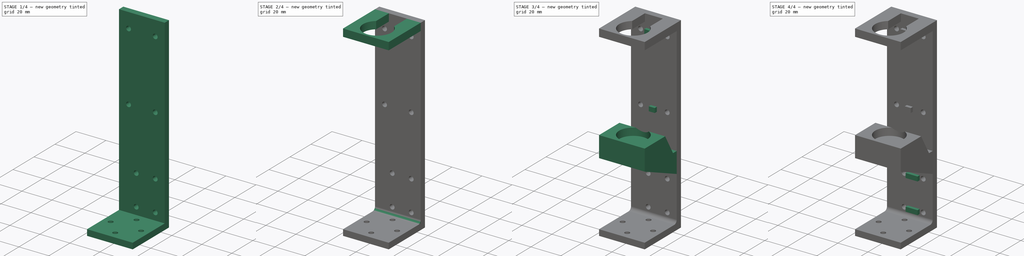
[diagram: build sequence overview — one tinted view per stage of 4, left to right]
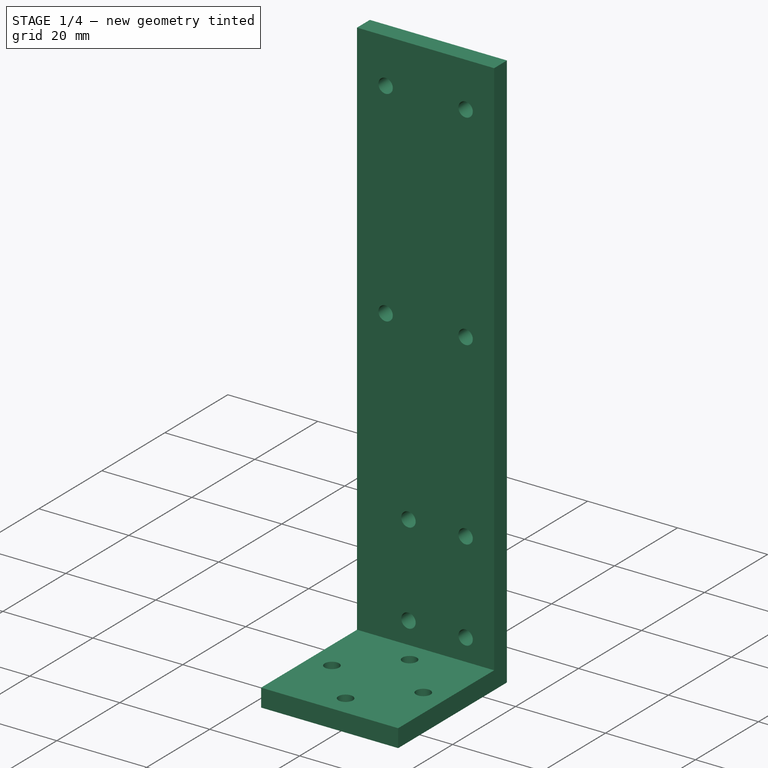
[diagram: stage 1 of 4 — iso view after this stage's code; geometry added in this stage tinted green]
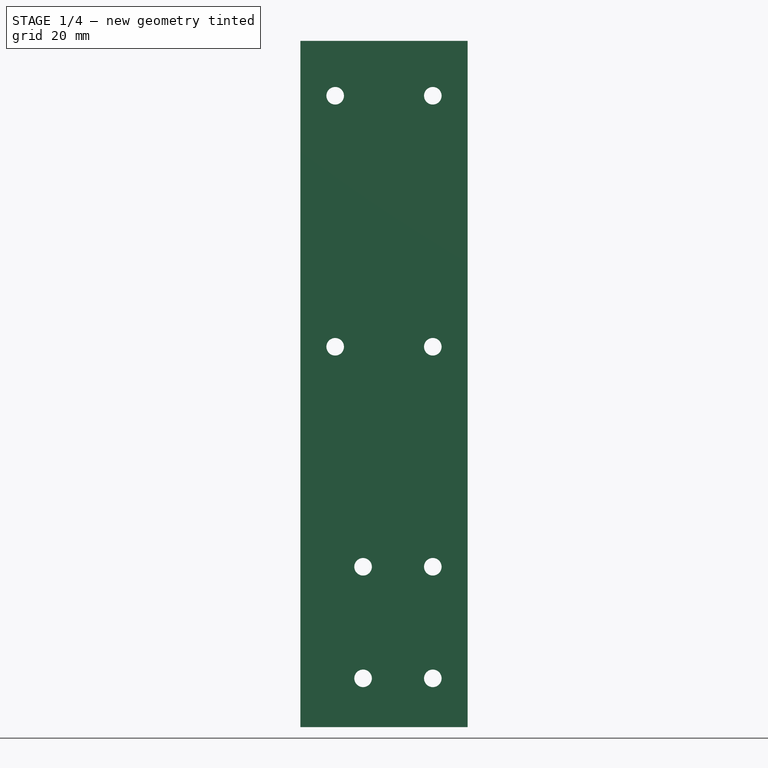
[diagram: stage 1 of 4 — front view after this stage's code; geometry added in this stage tinted green]
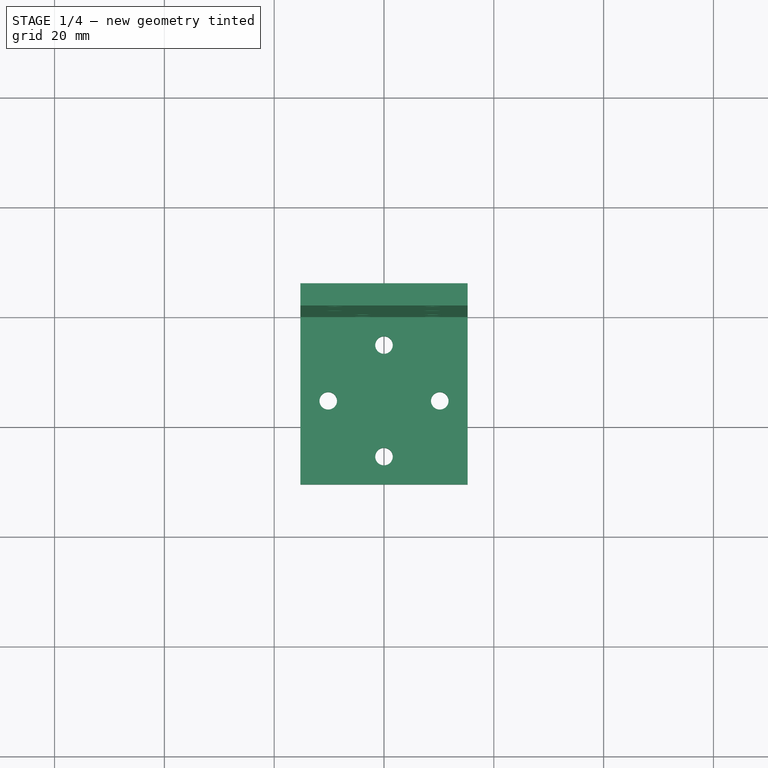
[diagram: stage 1 of 4 — top view after this stage's code; geometry added in this stage tinted green]
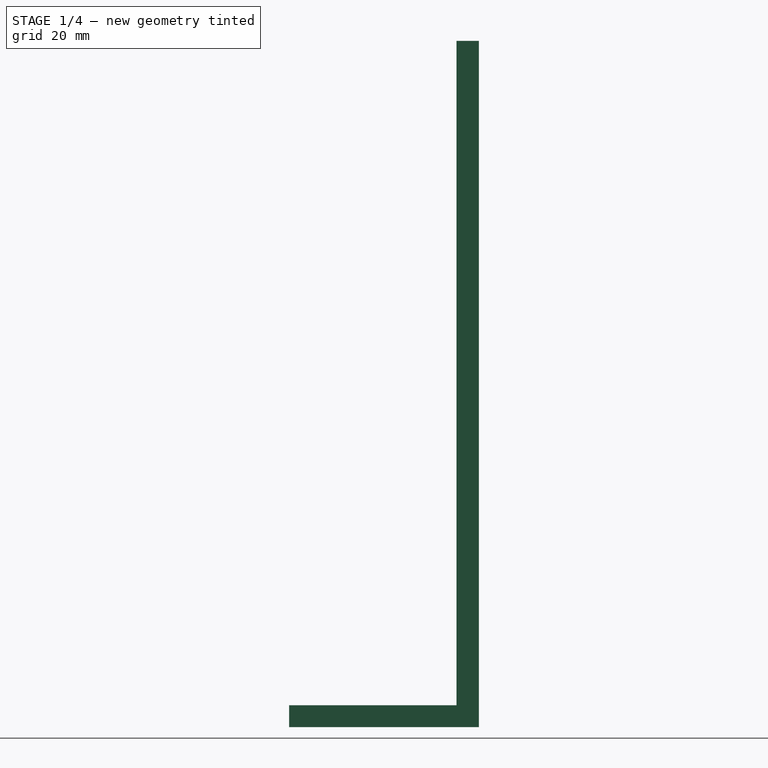
[diagram: stage 1 of 4 — right view after this stage's code; geometry added in this stage tinted green]
FCSTD DOCUMENT  (FreeCAD 1.0R39109 (Git))
Label: sensor_mount
License: Creative Commons Attribution-ShareAlike 4.0
LicenseURL: https://creativecommons.org/licenses/by-sa/4.0/
objects: Sketcher::SketchObject×8, PartDesign::Pad×6, PartDesign::Pocket×2, PartDesign::Fillet×1, PartDesign::Body×1
note: 44 computed .brp shape members not serialized (recipe doc carries the construction recipe); baked Part::Feature solids carry a one-line shape summary decoded from their .brp

FEATURE [Sketcher::SketchObject] Sketch
  ArcFitTolerance = 0
  AttachmentSupport = -> [XZ_Plane]
  FullyConstrained = true
  MakeInternals = false
  MapMode = 5
  Placement = pos=(0,0,0) rot=(1,0,0;1.5708rad)
  sketch-geometry (13):
    g0: LineSegment StartX=-15.24 StartY=0 StartZ=0 EndX=15.24 EndY=0 EndZ=0
    g1: LineSegment StartX=15.24 StartY=0 StartZ=0 EndX=15.24 EndY=125 EndZ=0
    g2: LineSegment StartX=15.24 StartY=125 StartZ=0 EndX=-15.24 EndY=125 EndZ=0
    g3: LineSegment StartX=-15.24 StartY=125 StartZ=0 EndX=-15.24 EndY=0 EndZ=0
    g4: Circle CenterX=-8.89 CenterY=69.28 CenterZ=0 NormalX=0 NormalY=0 NormalZ=1 AngleXU=0 Radius=1.6
    g5: Circle CenterX=8.89 CenterY=69.28 CenterZ=0 NormalX=0 NormalY=0 NormalZ=1 AngleXU=0 Radius=1.6
    g6: Circle CenterX=-8.89 CenterY=115 CenterZ=0 NormalX=0 NormalY=0 NormalZ=1 AngleXU=0 Radius=1.6
    g7: Circle CenterX=8.89 CenterY=115 CenterZ=0 NormalX=0 NormalY=0 NormalZ=1 AngleXU=0 Radius=1.6
    g8: Circle CenterX=-3.81 CenterY=29.21 CenterZ=0 NormalX=0 NormalY=0 NormalZ=1 AngleXU=0 Radius=1.6
    g9: Circle CenterX=8.89 CenterY=29.21 CenterZ=0 NormalX=0 NormalY=0 NormalZ=1 AngleXU=0 Radius=1.6
    g10: Circle CenterX=-3.81 CenterY=8.89 CenterZ=0 NormalX=0 NormalY=0 NormalZ=1 AngleXU=0 Radius=1.6
    g11: Circle CenterX=8.89 CenterY=8.89 CenterZ=0 NormalX=0 NormalY=0 NormalZ=1 AngleXU=0 Radius=1.6
    g12: GeomPoint [constr] X=-8.89 Y=92.14 Z=0
  constraints (36):
    c: Coincident(g0,g1)
    c: Coincident(g2,g3)
    c: Coincident(g3,g0)
    c: Horizontal(g2)
    c: Vertical(g1)
    c: Vertical(g3)
    c: DistanceX(g0,g0) = 30.48
    c: DistanceY(g0,g1) = 125
    c: Symmetric(g0,g0,g-2)
    c: Horizontal(g0,g-1)
    c: Diameter(g7) = 3.2
    c: Equal(g7,g6)
    c: Equal(g6,g4)
    c: Equal(g4,g5)
    c: Horizontal(g7,g6)
    c: Vertical(g7,g5)
    c: Vertical(g4,g6)
    c: DistanceX(g4,g5) = 17.78
    c: DistanceY(g4,g6) = 45.72
    c: Symmetric(g4,g5,g-2)
    c: Equal(g11,g9)
    c: Equal(g9,g8)
    c: Equal(g8,g10)
    c: Equal(g10,g7)
    c: Horizontal(g8,g9)
    c: Vertical(g8,g10)
    c: Vertical(g9,g11)
    c: DistanceX(g10,g11) = 12.7
    c: DistanceY(g11,g9) = 20.32
    c: Symmetric(g6,g4,g12)
    c: Coincident(g2,g1)
    c: Vertical(g5,g9)
    c: Horizontal(g10,g11)
    c: DistanceY(g0,g11) = 8.89
    c: DistanceX(g0,g0) = 30.48  'width'
    c: DistanceY(g7,g1) = 10
FEATURE [PartDesign::Pad] Pad
  Direction = (0,-1,2e-16)
  Length = 4.064
  Length2 = 10
  Placement = pos=(0,0,0) rot=(1,0,0;1.5708rad)
  Profile = -> Sketch
  ReferenceAxis = -> Sketch [N_Axis]
  Reversed = true
  Suppressed = false
  Type = 0
FEATURE [Sketcher::SketchObject] Sketch001
  ArcFitTolerance = 0
  AttachmentSupport = -> [XY_Plane]
  FullyConstrained = true
  MakeInternals = false
  MapMode = 5
  sketch-geometry (10):
    g0: LineSegment StartX=-15.24 StartY=0 StartZ=0 EndX=15.24 EndY=0 EndZ=0
    g1: LineSegment StartX=15.24 StartY=0 StartZ=0 EndX=15.24 EndY=-30.48 EndZ=0
    g2: LineSegment StartX=15.24 StartY=-30.48 StartZ=0 EndX=-15.24 EndY=-30.48 EndZ=0
    g3: LineSegment StartX=-15.24 StartY=-30.48 StartZ=0 EndX=-15.24 EndY=0 EndZ=0
    g4: Circle CenterX=0 CenterY=-5.08 CenterZ=0 NormalX=0 NormalY=0 NormalZ=1 AngleXU=0 Radius=1.6
    g5: Circle CenterX=3.6e-15 CenterY=-25.4 CenterZ=0 NormalX=0 NormalY=0 NormalZ=1 AngleXU=0 Radius=1.6
    g6: Circle CenterX=10.16 CenterY=-15.24 CenterZ=0 NormalX=0 NormalY=0 NormalZ=1 AngleXU=0 Radius=1.6
    g7: Circle CenterX=-10.16 CenterY=-15.24 CenterZ=0 NormalX=0 NormalY=0 NormalZ=1 AngleXU=0 Radius=1.6
    g8: LineSegment [constr] StartX=15.24 StartY=0 StartZ=0 EndX=-15.24 EndY=-30.48 EndZ=0
    g9: GeomPoint [constr] X=1.8e-15 Y=-15.24 Z=0
  constraints (24):
    c: Coincident(g0,g1)
    c: Coincident(g1,g2)
    c: Coincident(g2,g3)
    c: Coincident(g3,g0)
    c: Horizontal(g2)
    c: Vertical(g1)
    c: Vertical(g3)
    c: Symmetric(g0,g0,g-1)
    c: DistanceX(g0,g0) = 30.48
    c: DistanceY(g1,g0) = 30.48
    c: Horizontal(g0,g-1)
    c: PointOnObject(g4,g-2)
    c: Equal(g4,g7)
    c: Equal(g7,g5)
    c: Equal(g5,g6)
    c: Diameter(g4) = 3.2
    c: Coincident(g8,g0)
    c: Coincident(g8,g2)
    c: Symmetric(g2,g0,g9)
    c: Horizontal(g7,g9)
    c: Symmetric(g7,g6,g9)
    c: Symmetric(g5,g4,g9)
    c: DistanceX(g2,g7) = 5.08
    c: DistanceY(g1,g5) = 5.08
FEATURE [PartDesign::Pad] Pad001
  BaseFeature = -> Pad
  Direction = (0,0,1)
  Length = 4
  Length2 = 10
  Placement = pos=(0,0,0) rot=(1,0,0;1.5708rad)
  Profile = -> Sketch001
  ReferenceAxis = -> Sketch001 [N_Axis]
  Suppressed = false
  Type = 0
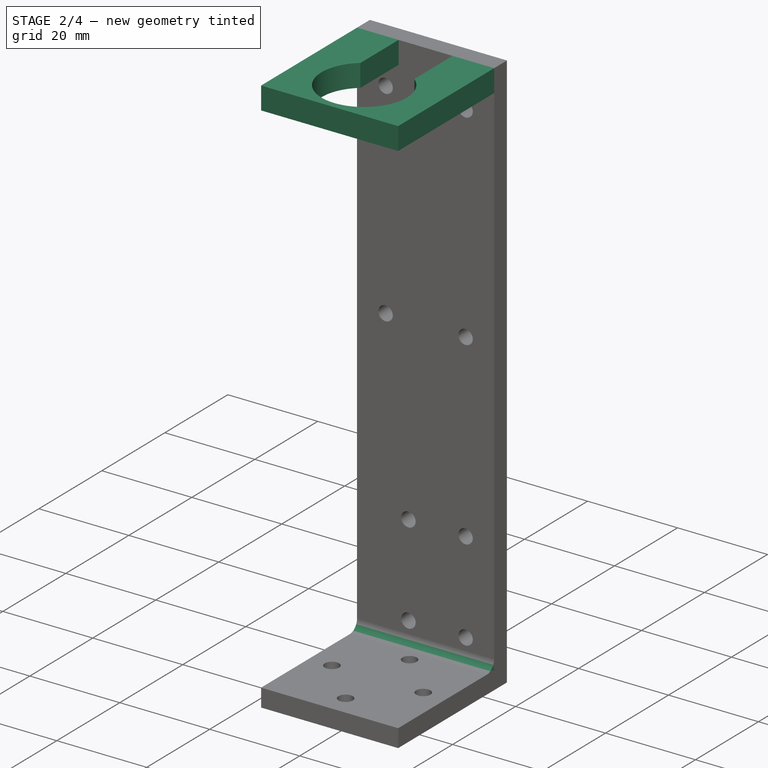
[diagram: stage 2 of 4 — iso view after this stage's code; geometry added in this stage tinted green]
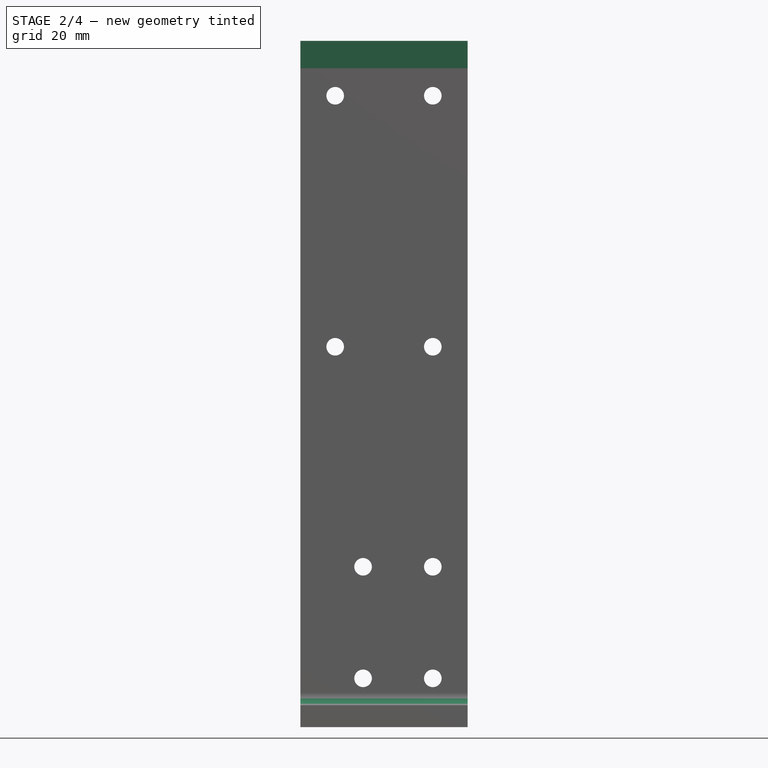
[diagram: stage 2 of 4 — front view after this stage's code; geometry added in this stage tinted green]
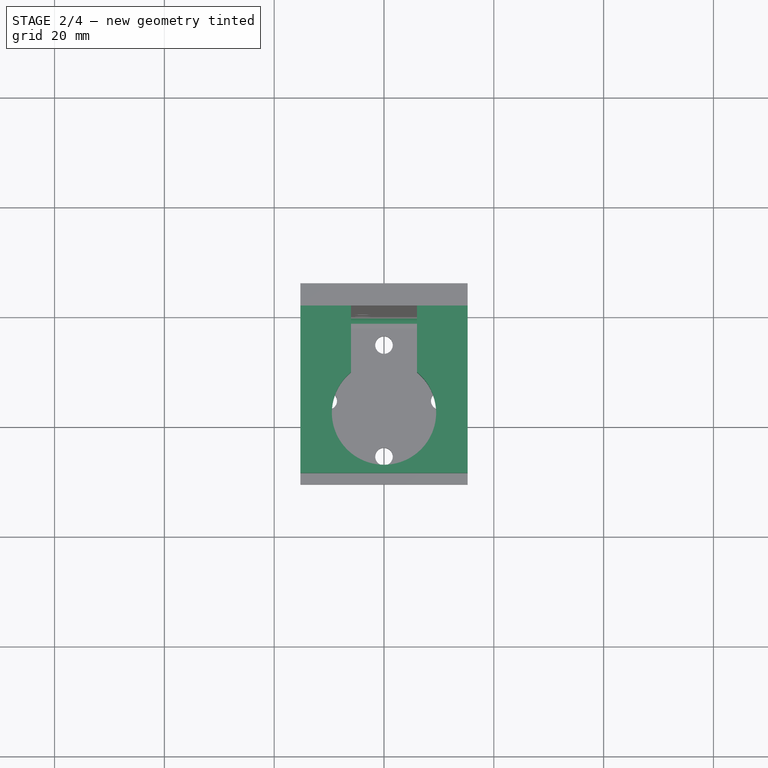
[diagram: stage 2 of 4 — top view after this stage's code; geometry added in this stage tinted green]
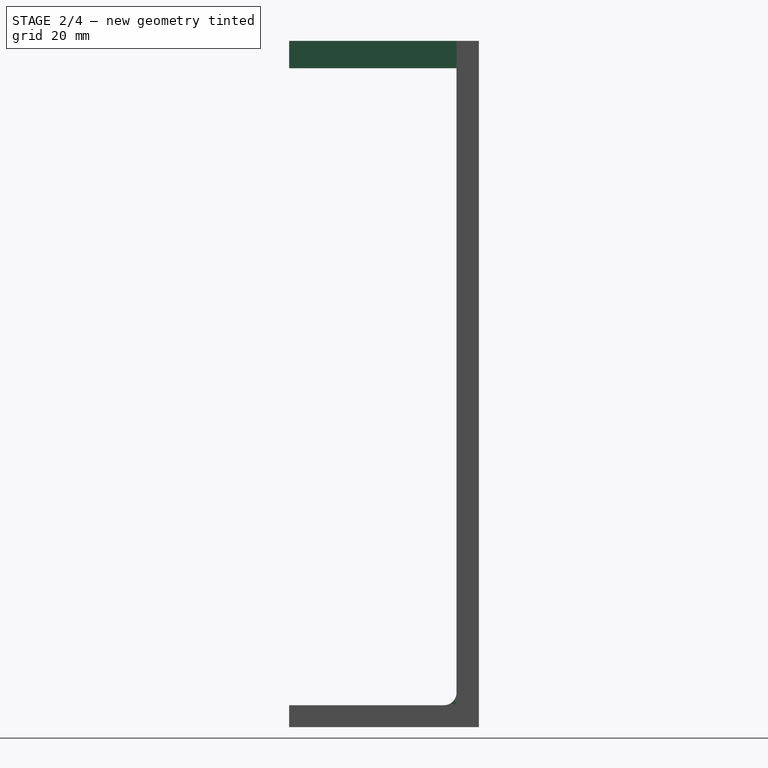
[diagram: stage 2 of 4 — right view after this stage's code; geometry added in this stage tinted green]
FEATURE [PartDesign::Fillet] Fillet
  Base = -> Pad001 [Edge30]
  BaseFeature = -> Pad001
  Placement = pos=(0,0,0) rot=(1,0,0;1.5708rad)
  Radius = 2.286
  SupportTransform = false
  Suppressed = false
  UseAllEdges = false
FEATURE [Sketcher::SketchObject] Sketch002
  ArcFitTolerance = 1e-06
  AttachmentSupport = -> [Pad001]
  ExternalGeometry = -> [Pad001]
  FullyConstrained = true
  MakeInternals = false
  MapMode = 5
  Placement = pos=(0,5.5e-14,125) rot=(0,0,1;3.14159rad)
  sketch-geometry (11):
    g0: LineSegment StartX=-15.24 StartY=30.48 StartZ=0 EndX=-15.24 EndY=0 EndZ=0
    g1: LineSegment StartX=15.24 StartY=0 StartZ=0 EndX=15.24 EndY=30.48 EndZ=0
    g2: LineSegment StartX=15.24 StartY=30.48 StartZ=0 EndX=-15.24 EndY=30.48 EndZ=0
    g3: GeomPoint [constr] X=2e-16 Y=19.5 Z=0
    g4: ArcOfCircle CenterX=2e-16 CenterY=19.5 CenterZ=0 NormalX=0 NormalY=0 NormalZ=1 AngleXU=0 Radius=9.5 StartAngle=5.39598 EndAngle=10.312
    g5: LineSegment StartX=-15.24 StartY=0 StartZ=0 EndX=-6 EndY=0 EndZ=0
    g6: LineSegment StartX=-6 StartY=0 StartZ=0 EndX=-6 EndY=12.1345 EndZ=0
    g7: LineSegment StartX=6 StartY=12.1345 StartZ=0 EndX=6 EndY=0 EndZ=0
    g8: LineSegment StartX=6 StartY=0 StartZ=0 EndX=15.24 EndY=0 EndZ=0
    g9: Circle [constr] CenterX=2e-16 CenterY=19.5 CenterZ=0 NormalX=0 NormalY=0 NormalZ=1 AngleXU=0 Radius=9.5
    g10: GeomPoint X=0 Y=10 Z=0
  constraints (27):
    c: Coincident(g1,g2)
    c: Coincident(g2,g0)
    c: Vertical(g0)
    c: Vertical(g1)
    c: PointOnObject(g1,g-1)
    c: Coincident(g1,g-3)
    c: Coincident(g4,g3)
    c: Diameter(g4) = 19
    c: Symmetric(g4,g4,g-2)
    c: DistanceX(g4,g4) = 12
    c: Coincident(g5,g0)
    c: PointOnObject(g5,g-1)
    c: Horizontal(g5)
    c: Coincident(g6,g5)
    c: Coincident(g6,g4)
    c: Coincident(g7,g4)
    c: PointOnObject(g7,g-1)
    c: Vertical(g7)
    c: Coincident(g8,g7)
    c: Coincident(g8,g1)
    c: Vertical(g6)
    c: Coincident(g9,g3)
    c: PointOnObject(g10,g9)
    c: PointOnObject(g10,g-2)
    c: DistanceY(g-1,g10) = 10
    c: Coincident(g0,g-3)
    c: Equal(g9,g4)
FEATURE [PartDesign::Pad] Pad002
  BaseFeature = -> Fillet
  Direction = (0,0,1)
  Length = 5
  Length2 = 10
  Placement = pos=(0,0,0) rot=(1,0,0;1.5708rad)
  Profile = -> Sketch002
  ReferenceAxis = -> Sketch002 [N_Axis]
  Reversed = true
  Suppressed = false
  Type = 0
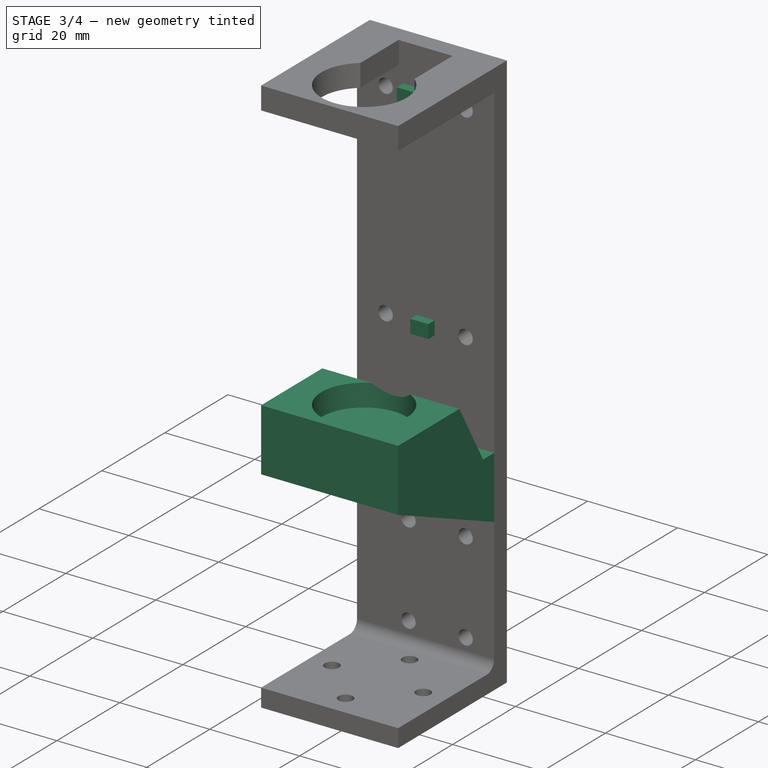
[diagram: stage 3 of 4 — iso view after this stage's code; geometry added in this stage tinted green]
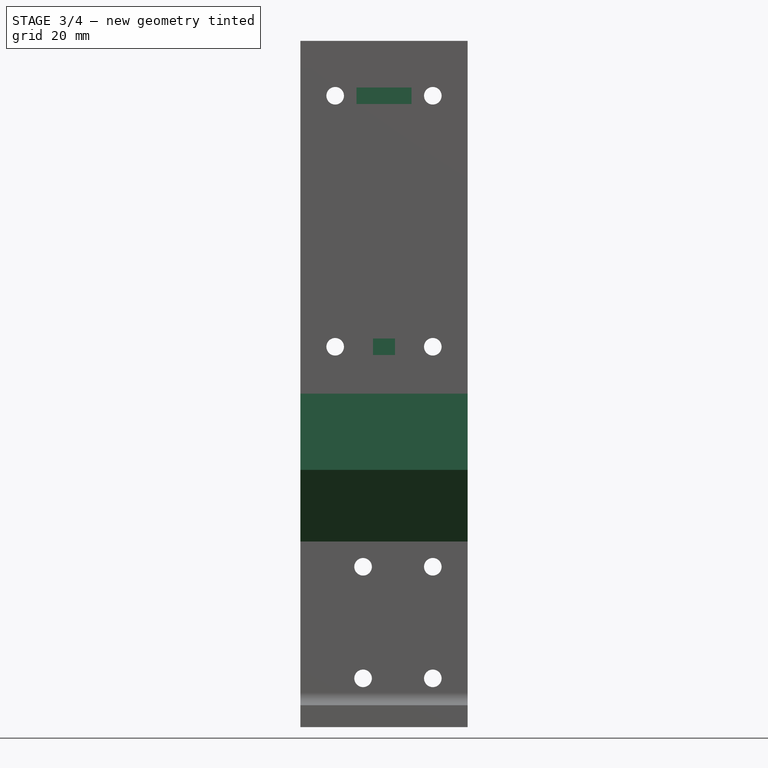
[diagram: stage 3 of 4 — front view after this stage's code; geometry added in this stage tinted green]
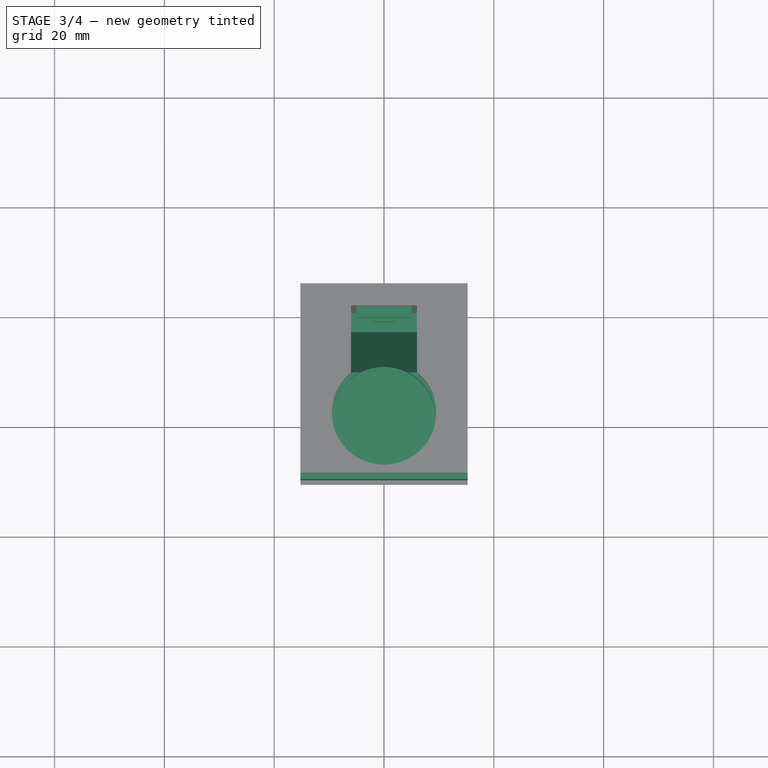
[diagram: stage 3 of 4 — top view after this stage's code; geometry added in this stage tinted green]
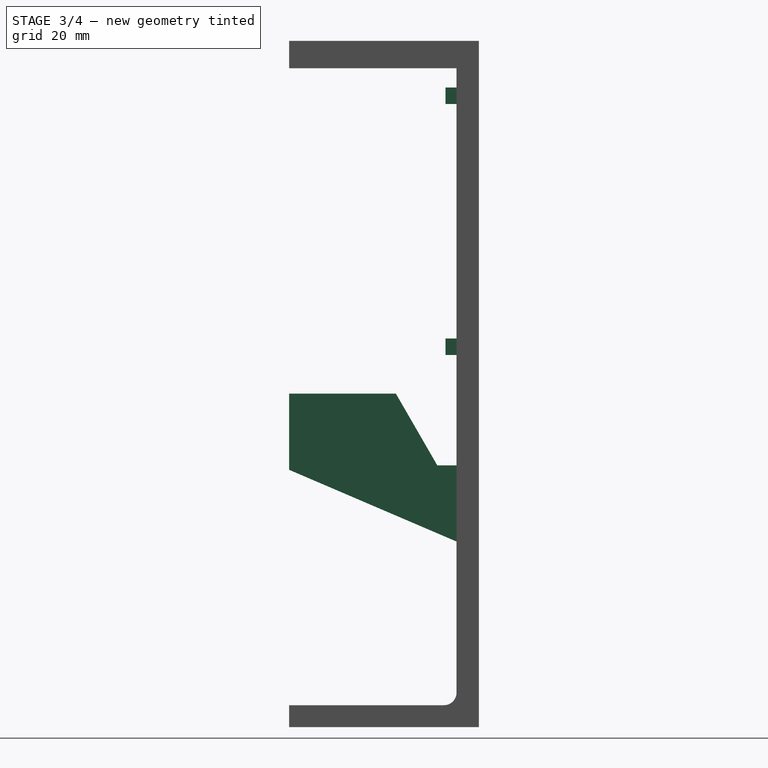
[diagram: stage 3 of 4 — right view after this stage's code; geometry added in this stage tinted green]
FEATURE [Sketcher::SketchObject] Sketch003
  ArcFitTolerance = 1e-06
  AttachmentSupport = -> [Pad002]
  ExternalGeometry = -> [Pad002]
  FullyConstrained = true
  MakeInternals = false
  MapMode = 5
  Placement = pos=(0,1.36e-14,0) rot=(1,0,0;1.5708rad)
  sketch-geometry (10):
    g0: LineSegment StartX=-2 StartY=70.78 StartZ=0 EndX=-2 EndY=67.78 EndZ=0
    g1: LineSegment StartX=-2 StartY=67.78 StartZ=0 EndX=2 EndY=67.78 EndZ=0
    g2: LineSegment StartX=2 StartY=67.78 StartZ=0 EndX=2 EndY=70.78 EndZ=0
    g3: LineSegment StartX=2 StartY=70.78 StartZ=0 EndX=-2 EndY=70.78 EndZ=0
    g4: GeomPoint [constr] X=1e-16 Y=69.28 Z=0
    g5: LineSegment StartX=-5 StartY=116.5 StartZ=0 EndX=-5 EndY=113.5 EndZ=0
    g6: LineSegment StartX=-5 StartY=113.5 StartZ=0 EndX=5 EndY=113.5 EndZ=0
    g7: LineSegment StartX=5 StartY=113.5 StartZ=0 EndX=5 EndY=116.5 EndZ=0
    g8: LineSegment StartX=5 StartY=116.5 StartZ=0 EndX=-5 EndY=116.5 EndZ=0
    g9: GeomPoint [constr] X=0 Y=115 Z=0
  constraints (26):
    c: Coincident(g0,g1)
    c: Coincident(g1,g2)
    c: Coincident(g2,g3)
    c: Coincident(g3,g0)
    c: Vertical(g0)
    c: Vertical(g2)
    c: Horizontal(g1)
    c: Horizontal(g3)
    c: Symmetric(g2,g0,g4)
    c: PointOnObject(g4,g-2)
    c: Horizontal(g-5,g4)
    c: DistanceY(g2,g2) = 3
    c: DistanceX(g3,g3) = 4
    c: Coincident(g5,g6)
    c: Coincident(g6,g7)
    c: Coincident(g7,g8)
    c: Coincident(g8,g5)
    c: Vertical(g5)
    c: Vertical(g7)
    c: Horizontal(g6)
    c: Horizontal(g8)
    c: Symmetric(g7,g5,g9)
    c: PointOnObject(g9,g-2)
    c: Horizontal(g9,g-4)
    c: DistanceY(g7,g7) = 3
    c: DistanceX(g8,g8) = 10
FEATURE [PartDesign::Pad] Pad003
  BaseFeature = -> Pad002
  Direction = (0,-1,2e-16)
  Length = 2
  Length2 = 10
  Placement = pos=(0,0,0) rot=(1,0,0;1.5708rad)
  Profile = -> Sketch003
  ReferenceAxis = -> Sketch003 [N_Axis]
  Suppressed = false
  Type = 0
FEATURE [Sketcher::SketchObject] Sketch004
  ArcFitTolerance = 1e-06
  AttachmentSupport = -> [YZ_Plane]
  ExternalGeometry = -> [Pad003]
  FullyConstrained = true
  MakeInternals = false
  MapMode = 5
  Placement = pos=(0,0,0) rot=(0.57735,0.57735,0.57735;2.0944rad)
  sketch-geometry (6):
    g0: LineSegment StartX=0 StartY=47.68 StartZ=0 EndX=-3.5 EndY=47.68 EndZ=0
    g1: LineSegment StartX=-3.5 StartY=47.68 StartZ=0 EndX=-11.0402 EndY=60.74 EndZ=0
    g2: LineSegment StartX=-11.0402 StartY=60.74 StartZ=0 EndX=-30.48 EndY=60.74 EndZ=0
    g3: LineSegment StartX=0 StartY=33.81 StartZ=0 EndX=0 EndY=47.68 EndZ=0
    g4: LineSegment StartX=-30.48 StartY=60.74 StartZ=0 EndX=-30.48 EndY=46.87 EndZ=0
    g5: LineSegment StartX=-30.48 StartY=46.87 StartZ=0 EndX=0 EndY=33.81 EndZ=0
  constraints (18):
    c: PointOnObject(g0,g-2)
    c: Horizontal(g0)
    c: Coincident(g1,g0)
    c: Coincident(g2,g1)
    c: Horizontal(g2)
    c: PointOnObject(g3,g-2)
    c: Coincident(g3,g0)
    c: DistanceY(g-4,g3) = 3
    c: DistanceX(g0,g0) = 3.5
    c: Angle(g1) = 2.0944
    c: Vertical(g2,g-5)
    c: Coincident(g4,g2)
    c: Vertical(g4)
    c: Coincident(g5,g4)
    c: Coincident(g5,g3)
    c: Equal(g3,g4)
    c: DistanceY(g3,g1) = 26.93
    c: DistanceY(g0,g-3) = 20
FEATURE [PartDesign::Pad] Pad004
  BaseFeature = -> Pad003
  Direction = (1,0,0)
  Length = 15.24
  Length2 = 15.24
  Placement = pos=(0,0,0) rot=(1,0,0;1.5708rad)
  Profile = -> Sketch004
  ReferenceAxis = -> Sketch004 [N_Axis]
  Suppressed = false
  Type = 4
  expr: Length = Sketch.Constraints.width / 2
  expr: Length2 = Sketch.Constraints.width / 2
FEATURE [Sketcher::SketchObject] Sketch005
  ArcFitTolerance = 1e-06
  AttachmentSupport = -> [Pad004]
  FullyConstrained = true
  MakeInternals = false
  MapMode = 5
  Placement = pos=(0,1.34e-14,60.74) rot=(0,0,1;3.14159rad)
  sketch-geometry (1):
    g0: Circle CenterX=0 CenterY=19.5 CenterZ=0 NormalX=0 NormalY=0 NormalZ=1 AngleXU=0 Radius=9.5
  constraints (2):
    c: Coincident(g0,g-3)
    c: Equal(g0,g-3)
FEATURE [PartDesign::Pocket] Pocket
  BaseFeature = -> Pad004
  Direction = (0,0,-1)
  Length = 5
  Length2 = 5
  Placement = pos=(0,0,0) rot=(1,0,0;1.5708rad)
  Profile = -> Sketch005
  ReferenceAxis = -> Sketch005 [N_Axis]
  Suppressed = false
  Type = 0
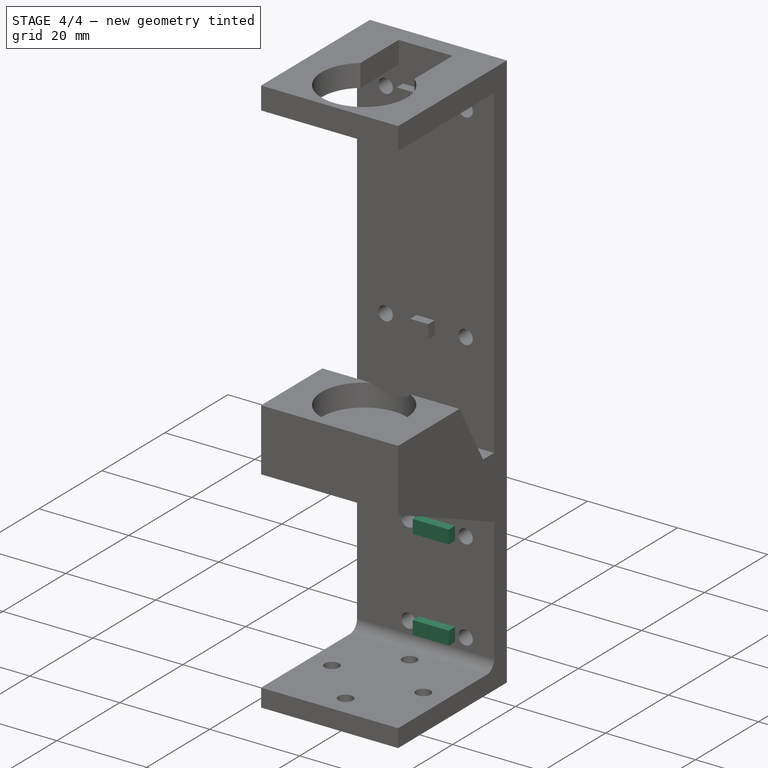
[diagram: stage 4 of 4 — iso view after this stage's code; geometry added in this stage tinted green]
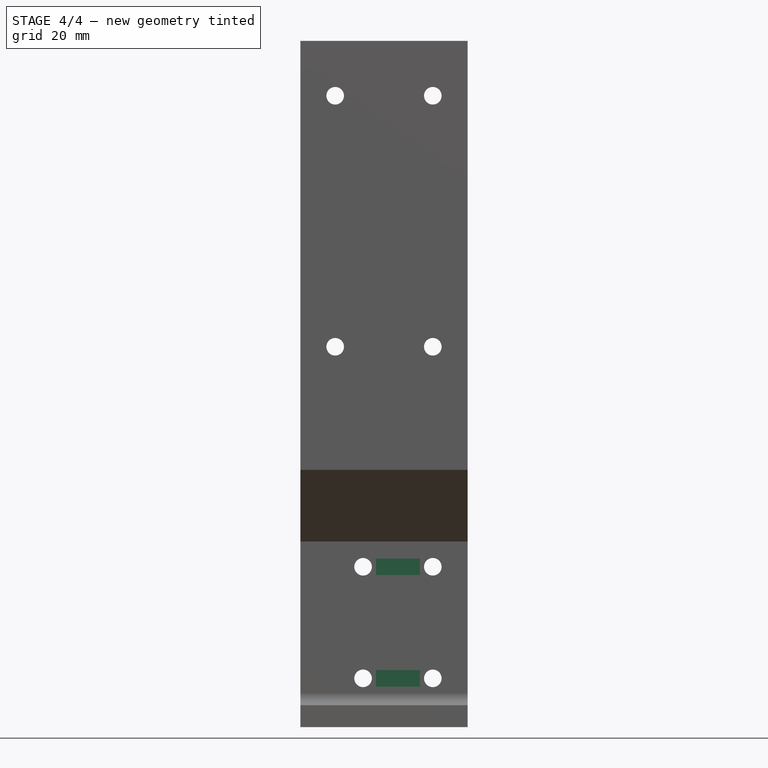
[diagram: stage 4 of 4 — front view after this stage's code; geometry added in this stage tinted green]
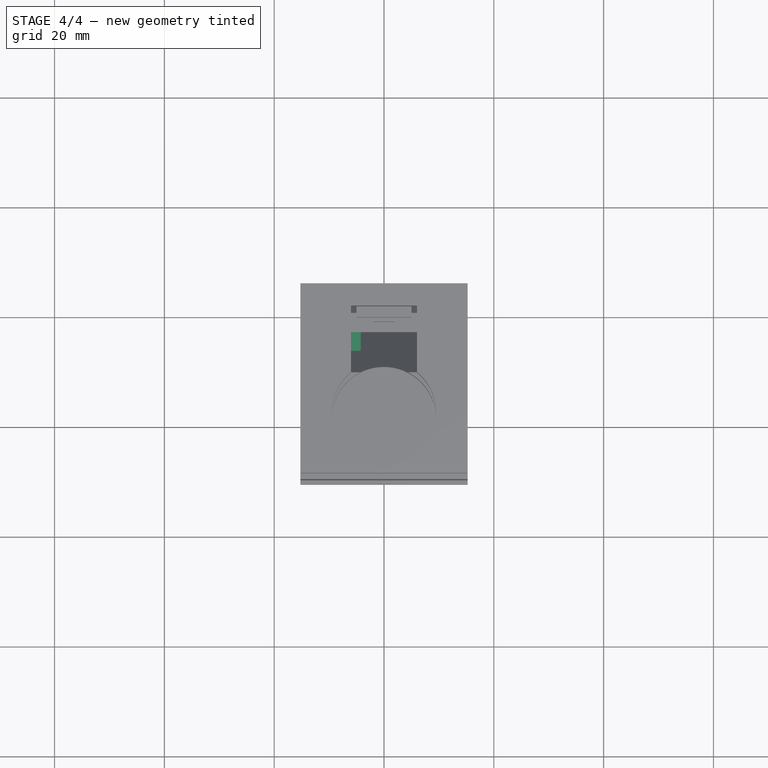
[diagram: stage 4 of 4 — top view after this stage's code; geometry added in this stage tinted green]
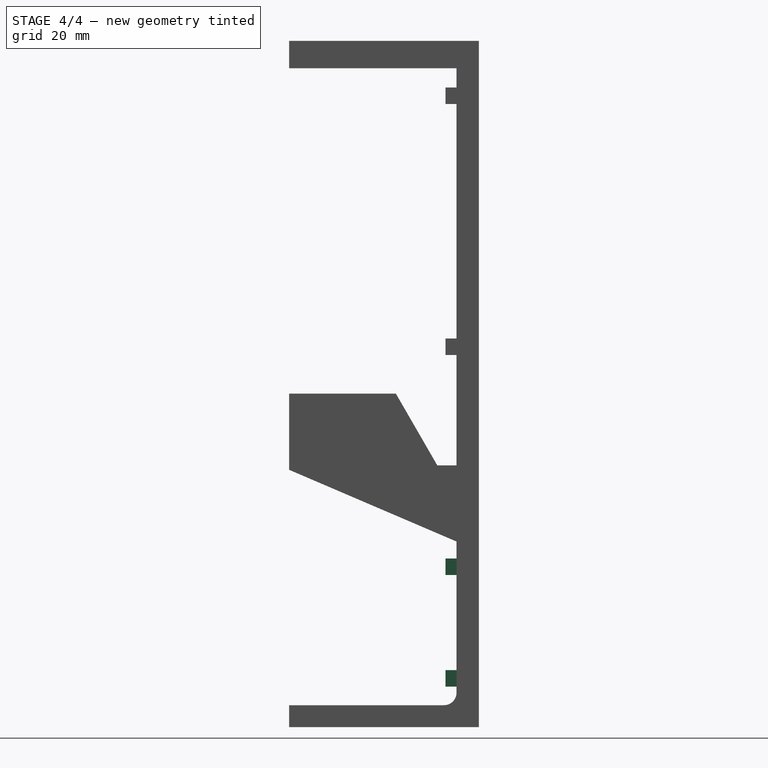
[diagram: stage 4 of 4 — right view after this stage's code; geometry added in this stage tinted green]
FEATURE [Sketcher::SketchObject] Sketch006
  ArcFitTolerance = 1e-06
  AttachmentSupport = -> [Pocket]
  ExternalGeometry = -> [Pocket]
  FullyConstrained = true
  MakeInternals = false
  MapMode = 5
  Placement = pos=(0,1.36e-14,0) rot=(1,0,0;1.5708rad)
  sketch-geometry (10):
    g0: LineSegment StartX=-1.46 StartY=30.71 StartZ=0 EndX=-1.46 EndY=27.71 EndZ=0
    g1: LineSegment StartX=-1.46 StartY=27.71 StartZ=0 EndX=6.54 EndY=27.71 EndZ=0
    g2: LineSegment StartX=6.54 StartY=27.71 StartZ=0 EndX=6.54 EndY=30.71 EndZ=0
    g3: LineSegment StartX=6.54 StartY=30.71 StartZ=0 EndX=-1.46 EndY=30.71 EndZ=0
    g4: GeomPoint [constr] X=2.54 Y=29.21 Z=0
    g5: LineSegment StartX=-1.46 StartY=10.39 StartZ=0 EndX=-1.46 EndY=7.39 EndZ=0
    g6: LineSegment StartX=-1.46 StartY=7.39 StartZ=0 EndX=6.54 EndY=7.39 EndZ=0
    g7: LineSegment StartX=6.54 StartY=7.39 StartZ=0 EndX=6.54 EndY=10.39 EndZ=0
    g8: LineSegment StartX=6.54 StartY=10.39 StartZ=0 EndX=-1.46 EndY=10.39 EndZ=0
    g9: GeomPoint [constr] X=2.54 Y=8.89 Z=0
  constraints (24):
    c: Coincident(g0,g1)
    c: Coincident(g1,g2)
    c: Coincident(g2,g3)
    c: Coincident(g3,g0)
    c: Vertical(g0)
    c: Vertical(g2)
    c: Horizontal(g1)
    c: Horizontal(g3)
    c: Symmetric(g2,g0,g4)
    c: Coincident(g5,g6)
    c: Coincident(g6,g7)
    c: Coincident(g7,g8)
    c: Coincident(g8,g5)
    c: Vertical(g5)
    c: Vertical(g7)
    c: Horizontal(g6)
    c: Horizontal(g8)
    c: Symmetric(g7,g5,g9)
    c: Symmetric(g-4,g-3,g4)
    c: Symmetric(g-5,g-6,g9)
    c: DistanceX(g1,g1) = 8
    c: DistanceY(g2,g2) = 3
    c: Equal(g7,g2)
    c: Equal(g8,g1)
FEATURE [PartDesign::Pad] Pad005
  BaseFeature = -> Pocket
  Direction = (0,-1,2e-16)
  Length = 2
  Length2 = 10
  Placement = pos=(0,0,0) rot=(1,0,0;1.5708rad)
  Profile = -> Sketch006
  ReferenceAxis = -> Sketch006 [N_Axis]
  Suppressed = false
  Type = 0
FEATURE [Sketcher::SketchObject] Sketch007
  ArcFitTolerance = 1e-06
  AttachmentSupport = -> [Pad005]
  ExternalGeometry = -> [Pad005]
  FullyConstrained = true
  MakeInternals = false
  MapMode = 5
  Placement = pos=(0,1.05e-14,47.68) rot=(0,0,1;3.14159rad)
  sketch-geometry (4):
    g0: LineSegment StartX=4.24 StartY=7 StartZ=0 EndX=4.24 EndY=0 EndZ=0
    g1: LineSegment StartX=4.24 StartY=0 StartZ=0 EndX=10.24 EndY=0 EndZ=0
    g2: LineSegment StartX=10.24 StartY=0 StartZ=0 EndX=10.24 EndY=7 EndZ=0
    g3: LineSegment StartX=10.24 StartY=7 StartZ=0 EndX=4.24 EndY=7 EndZ=0
  constraints (12):
    c: Coincident(g0,g1)
    c: Coincident(g1,g2)
    c: Coincident(g2,g3)
    c: Coincident(g3,g0)
    c: Vertical(g0)
    c: Vertical(g2)
    c: Horizontal(g1)
    c: Horizontal(g3)
    c: Horizontal(g1,g-3)
    c: DistanceX(g1,g-3) = 5
    c: DistanceX(g0,g-3) = 11
    c: DistanceY(g2,g2) = 7
FEATURE [PartDesign::Pocket] Pocket001
  BaseFeature = -> Pad005
  Direction = (0,0,-1)
  Length = 10
  Length2 = 5
  Placement = pos=(0,0,0) rot=(1,0,0;1.5708rad)
  Profile = -> Sketch007
  ReferenceAxis = -> Sketch007 [N_Axis]
  Reversed = true
  Suppressed = false
  Type = 0
FEATURE [PartDesign::Body] Body
  AllowCompound = false
  Group = -> [Sketch,Pad,Sketch001,Pad001,Fillet,Sketch002,Pad002,Sketch003,Pad003,Sketch004,Pad004,Sketch005,Pocket,Sketch006,Pad005,Sketch007,Pocket001]
  Origin = -> Origin
  Tip = -> Pocket001
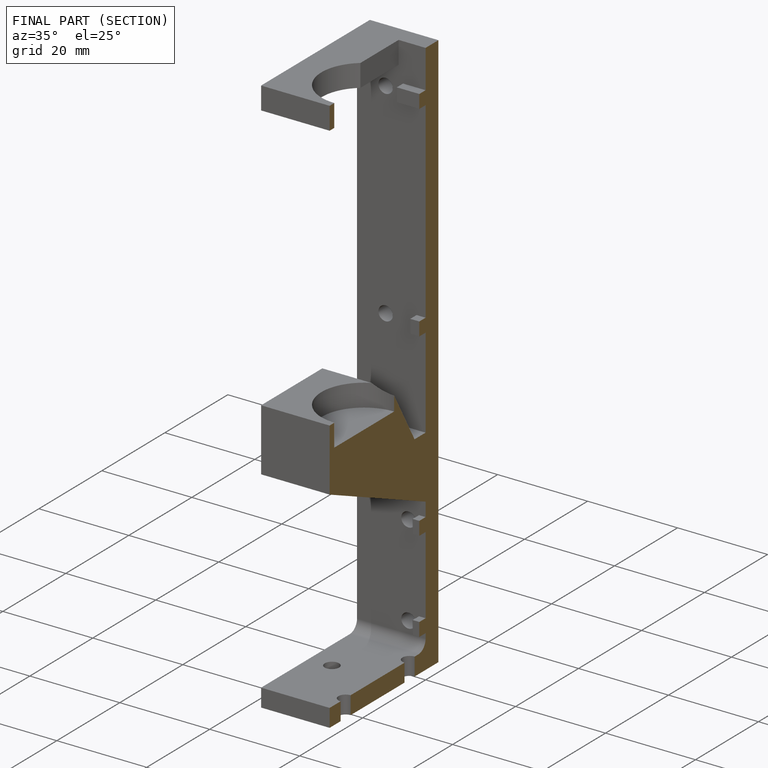
[diagram: finished part — half-section view (interior)]
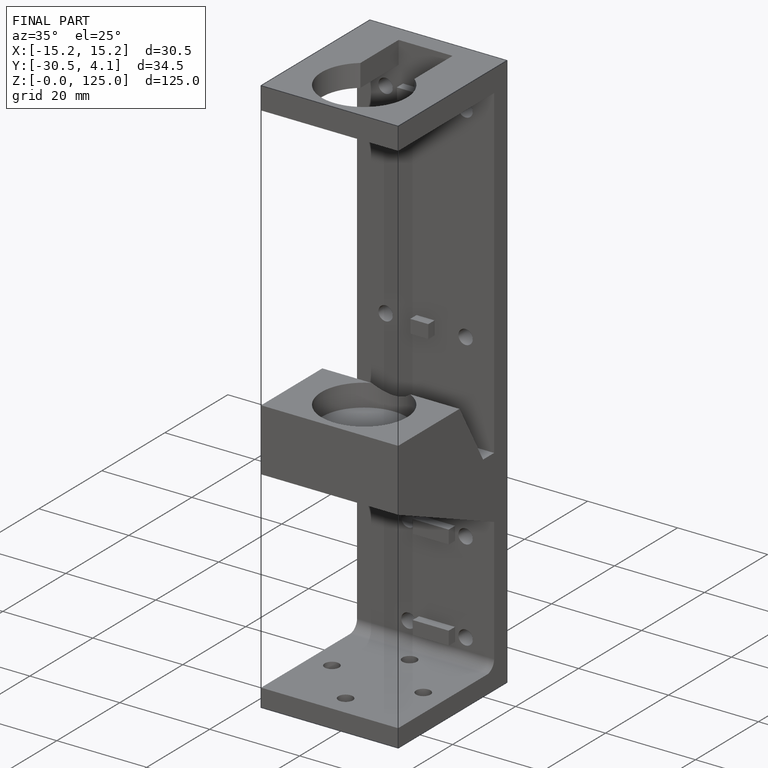
[diagram: finished part — iso view with bounding-box wireframe]
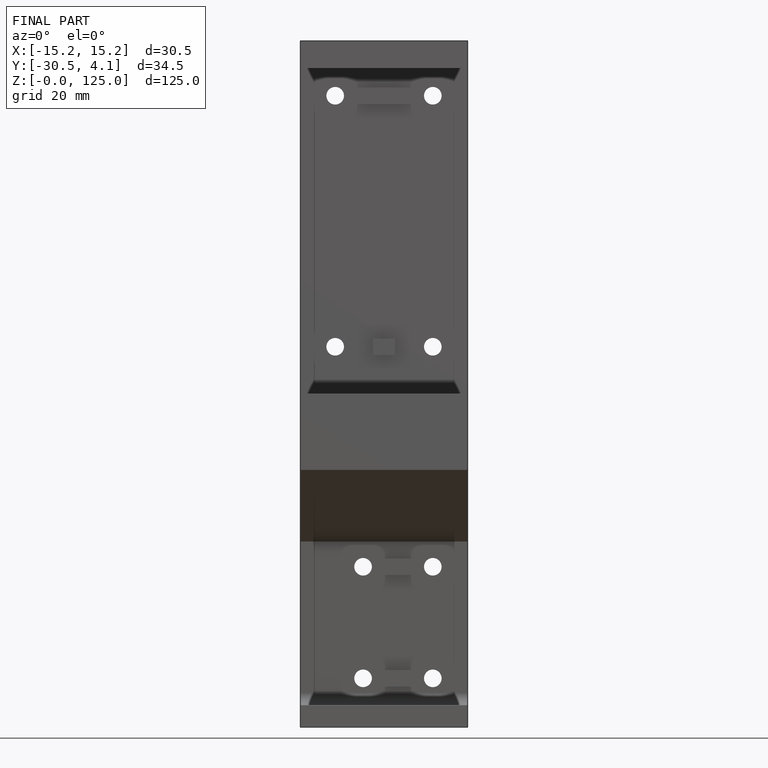
[diagram: finished part — front view with bounding-box wireframe]
